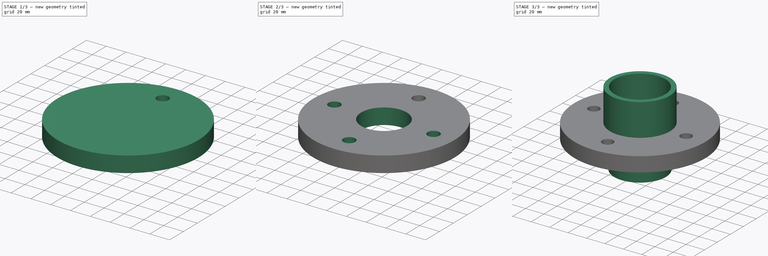
[diagram: build sequence overview — one tinted view per stage of 3, left to right]
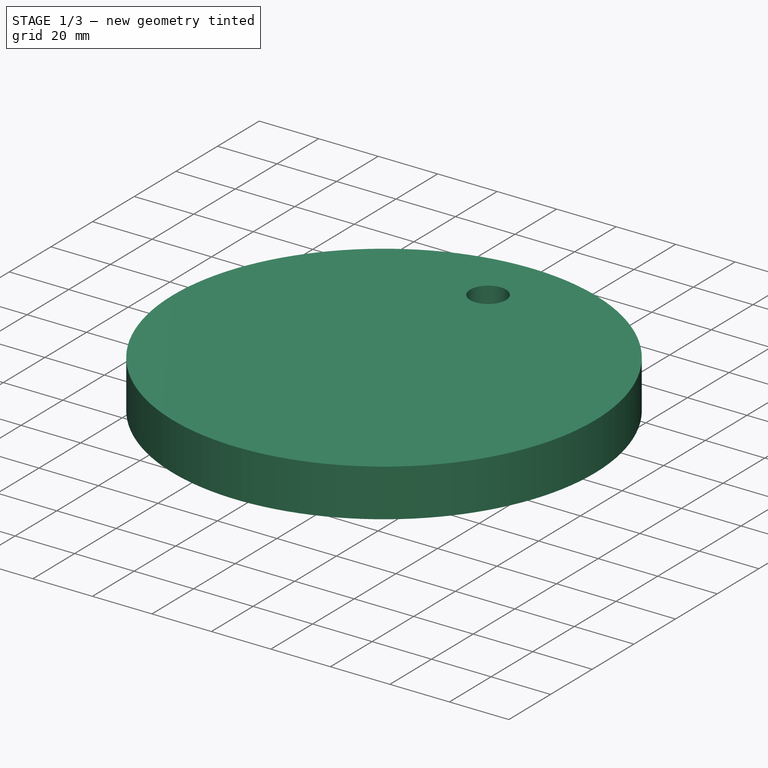
[diagram: stage 1 of 3 — iso view after this stage's code; geometry added in this stage tinted green]
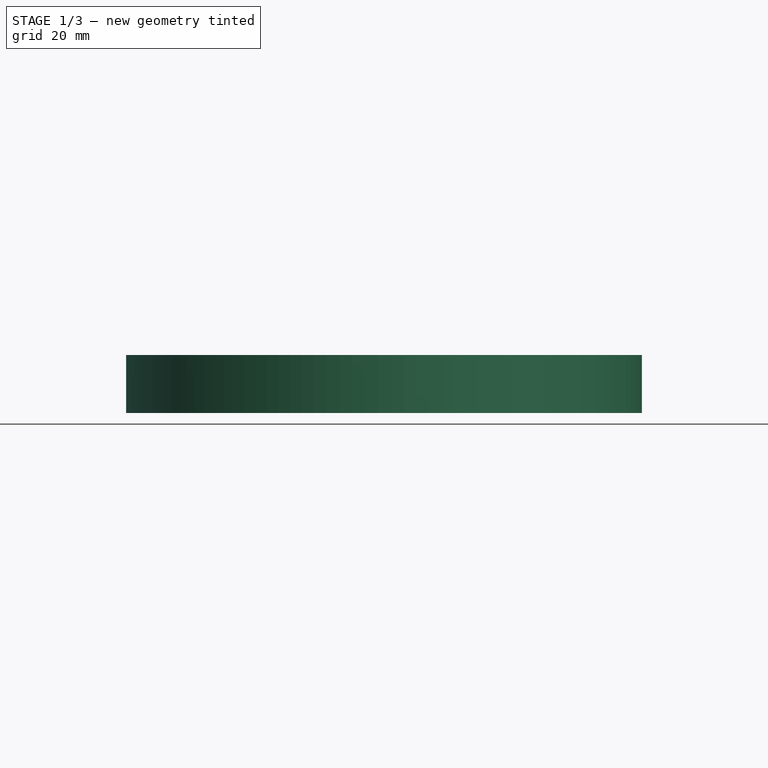
[diagram: stage 1 of 3 — front view after this stage's code; geometry added in this stage tinted green]
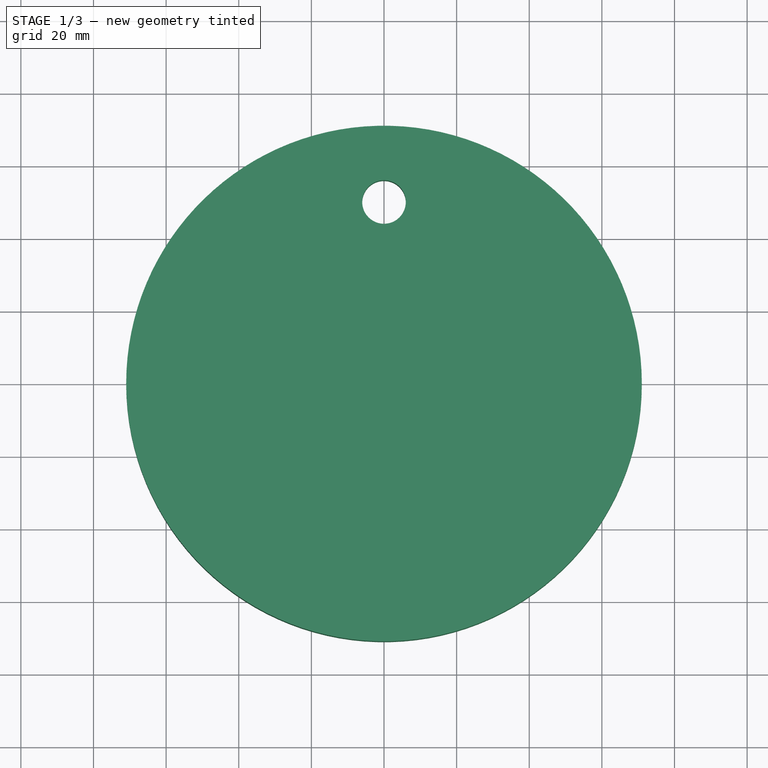
[diagram: stage 1 of 3 — top view after this stage's code; geometry added in this stage tinted green]
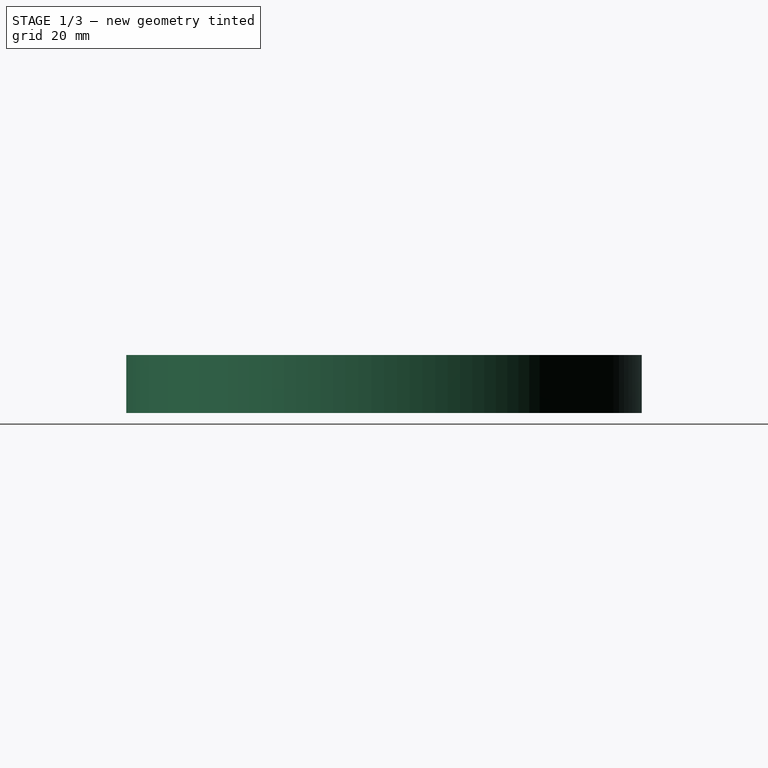
[diagram: stage 1 of 3 — right view after this stage's code; geometry added in this stage tinted green]
FCSTD DOCUMENT  (FreeCAD 0.20R29177 (Git))
Label: Hub_Flange
License: All rights reserved
LicenseURL: http://en.wikipedia.org/wiki/All_rights_reserved
objects: Sketcher::SketchObject×5, PartDesign::Pad×3, PartDesign::Pocket×2, PartDesign::Plane×1, PartDesign::PolarPattern×1, PartDesign::Body×1, Spreadsheet::Sheet×1
note: 18 computed .brp shape members not serialized (recipe doc carries the construction recipe); baked Part::Feature solids carry a one-line shape summary decoded from their .brp
EXTERNAL_REF file=../../Master_of_Puppets.FCStd obj=Hub

FEATURE [Sketcher::SketchObject] Sketch  label="MiddlePadSketch"
  FullyConstrained = true
  MapMode = 5
  Support = -> [XY_Plane]
  expr: Constraints[1] = Spreadsheet.MiddlePadRadius
  sketch-geometry (1):
    g0: Circle CenterX=0 CenterY=0 CenterZ=0 NormalX=0 NormalY=0 NormalZ=1 AngleXU=0 Radius=71
  constraints (2):
    c: Coincident(g0,g-1)
    c: Radius(g0) = 71
FEATURE [PartDesign::Pad] Pad  label="MiddlePad"
  AllowMultiFace = false
  Direction = (0,0,1)
  Length = 16
  Length2 = 100
  Profile = -> Sketch
  Type = 0
FEATURE [PartDesign::Plane] DatumPlane
  Length = 170.4
  Placement = pos=(0,0,16) rot=(0,0,1;0rad)
  ResizeMode = 0
  Width = 170.4
  expr: .Placement.Base.z = Pad.Length
FEATURE [Sketcher::SketchObject] Sketch001  label="HubHoleSketch"
  FullyConstrained = true
  MapMode = 5
  Placement = pos=(0,0,16) rot=(0,0,1;0rad)
  Support = -> [DatumPlane]
  expr: Constraints[0] = Spreadsheet.HubPitchCircleRadius
  expr: Constraints[1] = Spreadsheet.HubHolesRadius
  sketch-geometry (1):
    g0: Circle CenterX=0 CenterY=50 CenterZ=0 NormalX=0 NormalY=0 NormalZ=1 AngleXU=0 Radius=6
  constraints (3):
    c: Distance(g-1,g0) = 50
    c: Radius(g0) = 6
    c: PointOnObject(g0,g-2)
FEATURE [PartDesign::Pocket] Pocket  label="HubHole"
  AllowMultiFace = false
  BaseFeature = -> Pad
  Direction = (0,0,-1)
  Length = 16
  Length2 = 100
  Profile = -> Sketch001
  Type = 0
  expr: Length = Spreadsheet.MiddlePadThickness
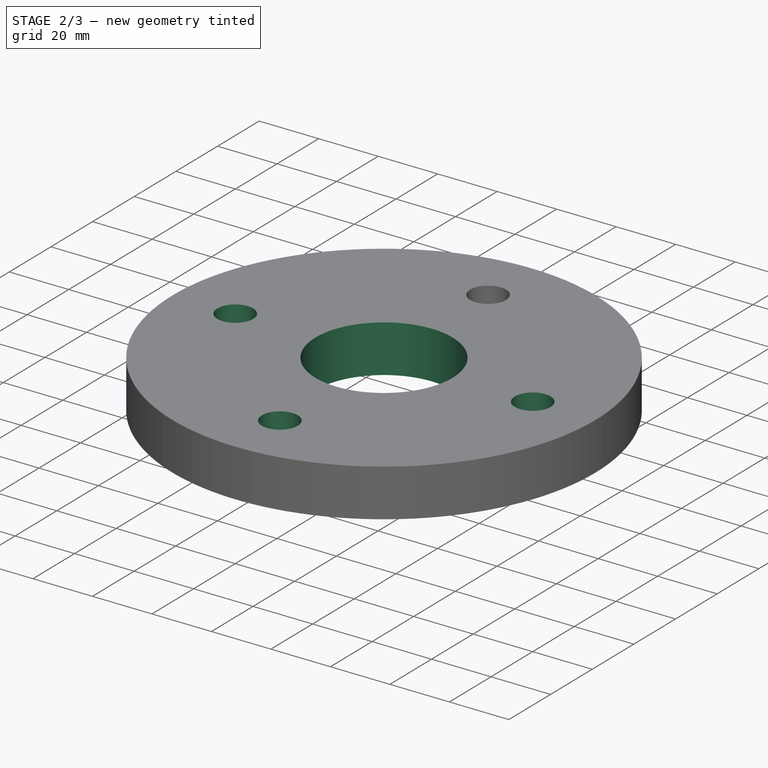
[diagram: stage 2 of 3 — iso view after this stage's code; geometry added in this stage tinted green]
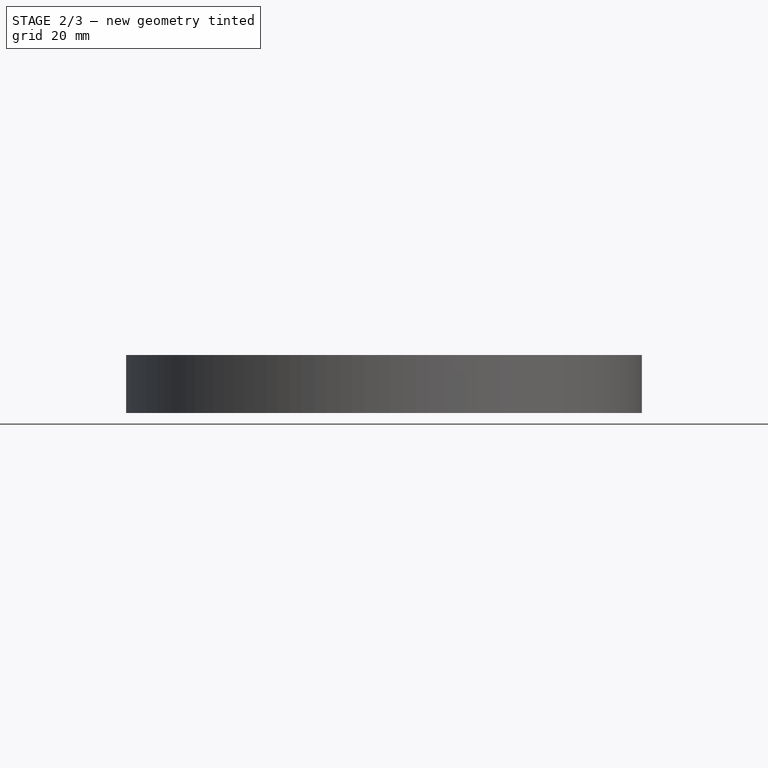
[diagram: stage 2 of 3 — front view after this stage's code; geometry added in this stage tinted green]
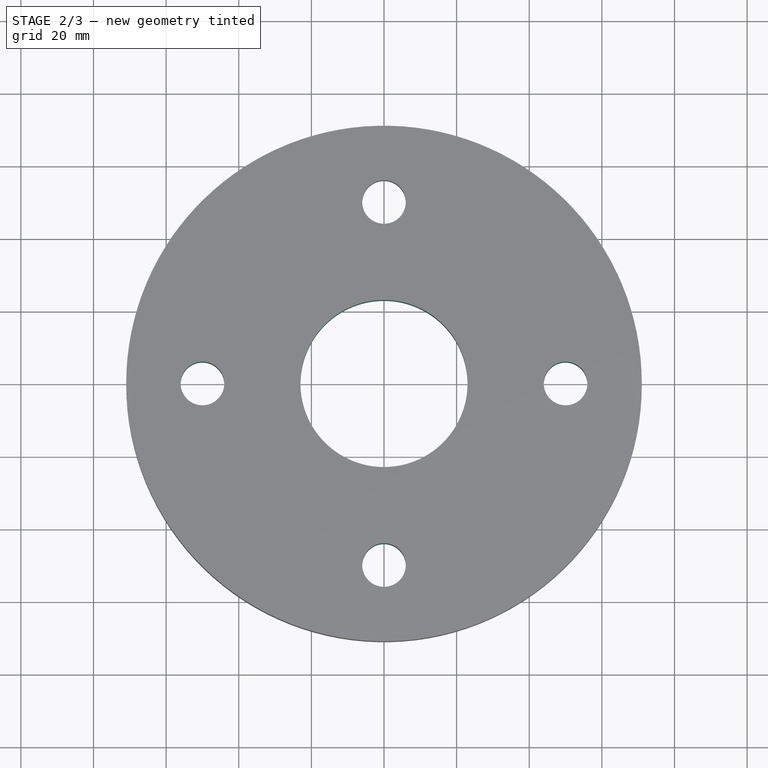
[diagram: stage 2 of 3 — top view after this stage's code; geometry added in this stage tinted green]
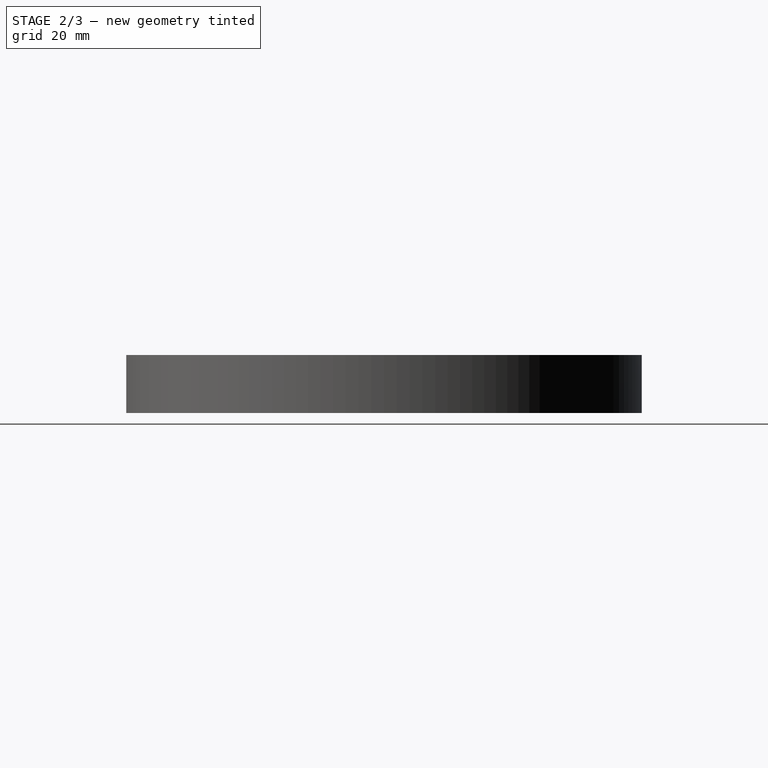
[diagram: stage 2 of 3 — right view after this stage's code; geometry added in this stage tinted green]
FEATURE [Sketcher::SketchObject] Sketch002  label="InnerHoleSketch"
  FullyConstrained = false
  MapMode = 5
  Placement = pos=(0,0,16) rot=(0,0,1;0rad)
  Support = -> [DatumPlane]
  expr: Constraints[0] = Spreadsheet.RotorSidePadRadius - Spreadsheet.ProtrudingPadThickness
  sketch-geometry (1):
    g0: Circle CenterX=0 CenterY=0 CenterZ=0 NormalX=0 NormalY=0 NormalZ=1 AngleXU=0 Radius=23
  constraints (1):
    c: Radius(g0) = 23
FEATURE [PartDesign::Pocket] Pocket001  label="InnerHole"
  AllowMultiFace = false
  BaseFeature = -> Pocket
  Direction = (0,0,-1)
  Length = 16
  Length2 = 100
  Profile = -> Sketch002
  Type = 0
  expr: Length = Pad.Length
FEATURE [PartDesign::PolarPattern] PolarPattern
  Angle = 360
  Axis = -> Z_Axis
  BaseFeature = -> Pocket001
  Occurrences = 4
  Originals = -> [Pocket]
  expr: Occurrences = Spreadsheet.NumberOfHoles
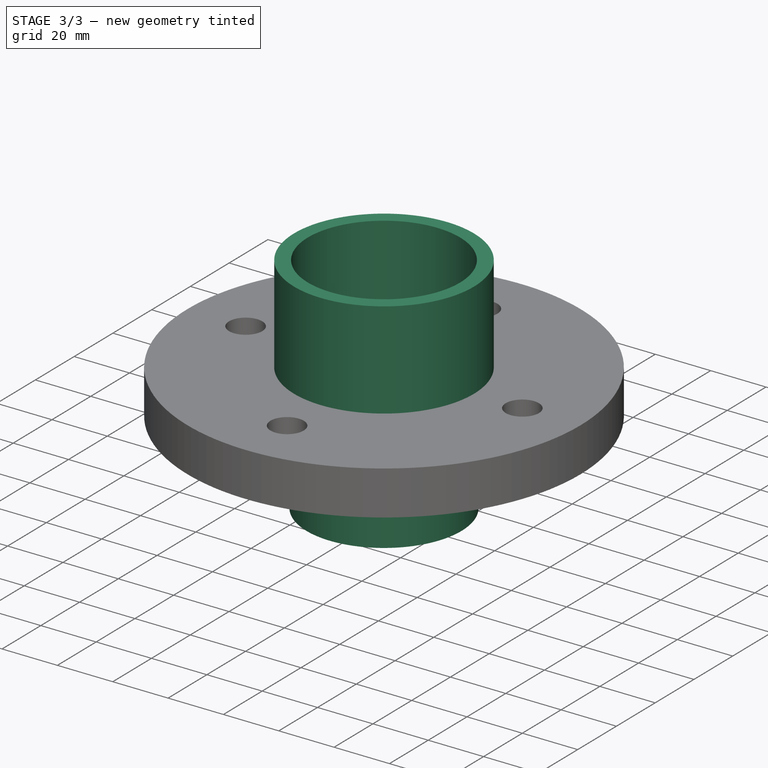
[diagram: stage 3 of 3 — iso view after this stage's code; geometry added in this stage tinted green]
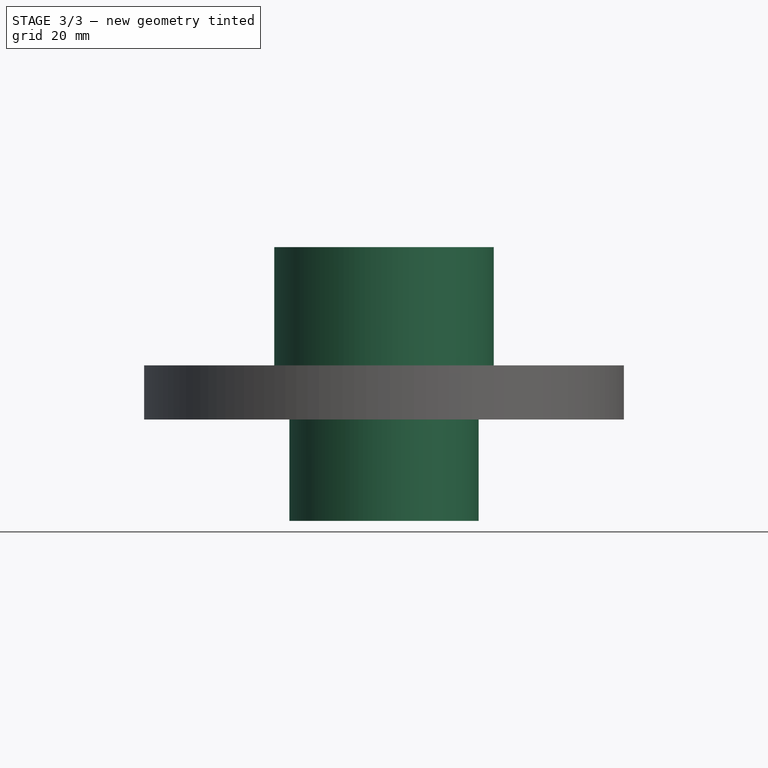
[diagram: stage 3 of 3 — front view after this stage's code; geometry added in this stage tinted green]
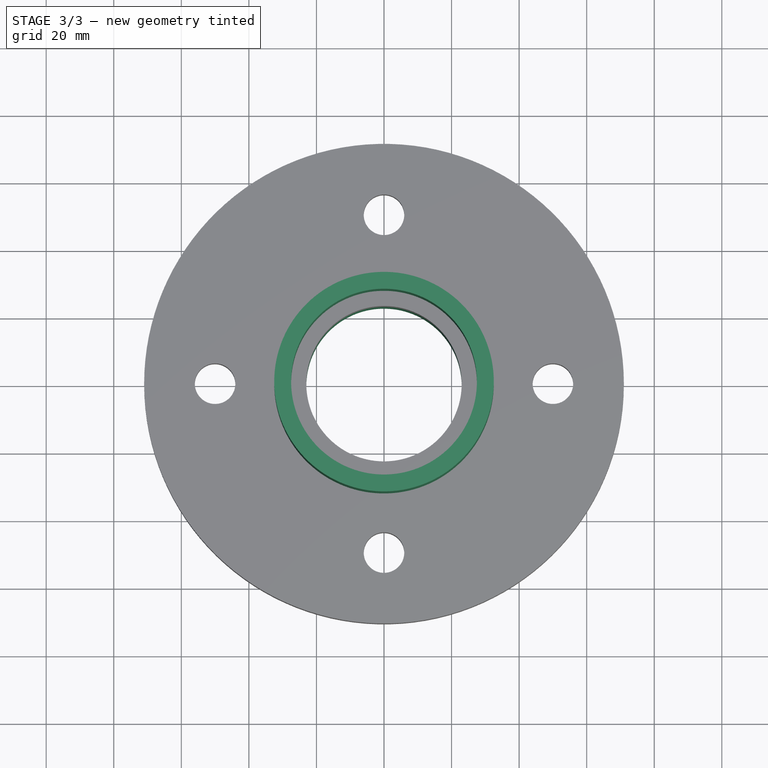
[diagram: stage 3 of 3 — top view after this stage's code; geometry added in this stage tinted green]
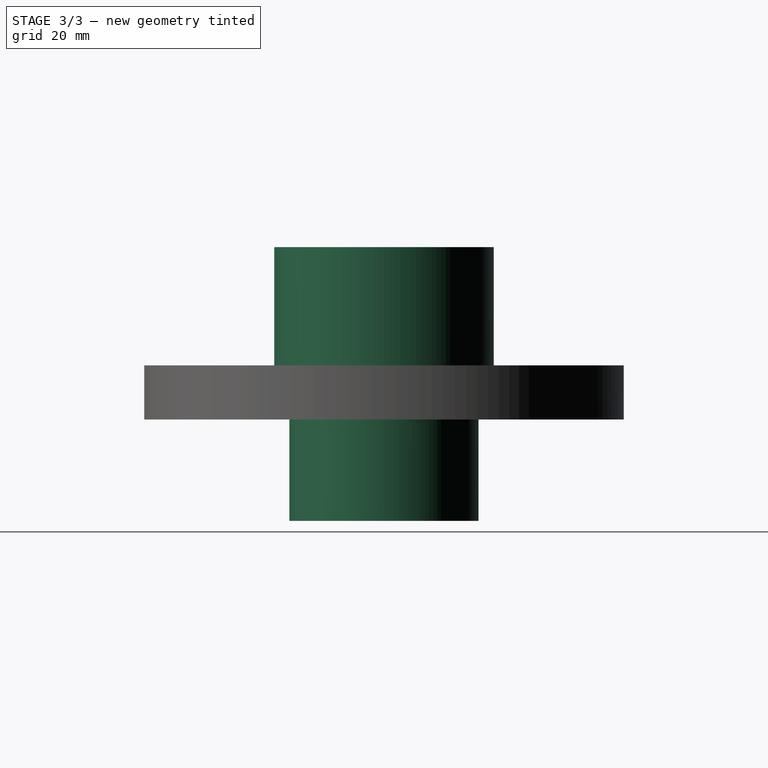
[diagram: stage 3 of 3 — right view after this stage's code; geometry added in this stage tinted green]
FEATURE [Sketcher::SketchObject] Sketch004  label="FrameSidePadSketch"
  FullyConstrained = true
  MapMode = 5
  Placement = pos=(0,0,16) rot=(0,0,1;0rad)
  Support = -> [DatumPlane]
  expr: Constraints[1] = Spreadsheet.FrameSidePadRadius - Spreadsheet.ProtrudingPadThickness
  expr: Constraints[3] = Spreadsheet.FrameSidePadRadius
  sketch-geometry (2):
    g0: Circle CenterX=0 CenterY=0 CenterZ=0 NormalX=0 NormalY=0 NormalZ=1 AngleXU=0 Radius=27.5
    g1: Circle CenterX=0 CenterY=0 CenterZ=0 NormalX=0 NormalY=0 NormalZ=1 AngleXU=0 Radius=32.5
  constraints (4):
    c: Coincident(g0,g-1)
    c: Radius(g0) = 27.5
    c: Coincident(g1,g0)
    c: Radius(g1) = 32.5
FEATURE [PartDesign::Pad] Pad001  label="FrameSidePad"
  AllowMultiFace = false
  BaseFeature = -> PolarPattern
  Direction = (0,0,1)
  Length = 35
  Length2 = 100
  Profile = -> Sketch004
  Type = 0
  expr: Length = Spreadsheet.FrameSidePadWidth - Spreadsheet.CoverThickness
FEATURE [Sketcher::SketchObject] Sketch005  label="RotorSidePadSketch"
  FullyConstrained = true
  MapMode = 5
  Placement = pos=(0,0,0) rot=(0,1,0;3.14159rad)
  Support = -> [XY_Plane]
  expr: Constraints[1] = Spreadsheet.RotorSidePadRadius - Spreadsheet.ProtrudingPadThickness
  expr: Constraints[3] = Spreadsheet.RotorSidePadRadius
  sketch-geometry (2):
    g0: Circle CenterX=0 CenterY=0 CenterZ=0 NormalX=0 NormalY=0 NormalZ=1 AngleXU=0 Radius=23
    g1: Circle CenterX=0 CenterY=0 CenterZ=0 NormalX=0 NormalY=0 NormalZ=1 AngleXU=0 Radius=28
  constraints (4):
    c: Coincident(g0,g-1)
    c: Radius(g0) = 23
    c: Coincident(g1,g0)
    c: Radius(g1) = 28
FEATURE [PartDesign::Pad] Pad002  label="RotorSidePad"
  AllowMultiFace = false
  BaseFeature = -> Pad001
  Direction = (0,0,-1)
  Length = 30
  Length2 = 100
  Profile = -> Sketch005
  Type = 0
  expr: Length = Spreadsheet.RotorSidePadWidth - Spreadsheet.CoverThickness
FEATURE [PartDesign::Body] Body  label="Hub_Flange"
  Group = -> [Sketch,Pad,DatumPlane,Sketch001,Pocket,Sketch002,Pocket001,PolarPattern,Sketch004,Pad001,Sketch005,Pad002]
  Origin = -> Origin
  Tip = -> Pad002
FEATURE [Spreadsheet::Sheet] Spreadsheet
  cells = A1=Inputs; A2=HubPitchCircleRadius; B2(HubPitchCircleRadius)==Master_of_Puppets#Hub.HubPitchCircleRadius; A3=HubHolesRadius; B3(HubHolesRadius)==Master_of_Puppets#Hub.HubHolesRadius; A4=MiddlePadRadius; B4(MiddlePadRadius)==Master_of_Puppets#Hub.MiddlePadRadius; A5=MiddlePadThickness; B5(MiddlePadThickness)==Master_of_Puppets#Hub.MiddlePadThickness; A6=ProtrudingPadThickness; B6(ProtrudingPadThickness)==Master_of_Puppets#Hub.ProtrudingPadThickness; A7=CoverThickness; B7(CoverThickness)==Master_of_Puppets#Hub.CoverThickness; A8=FrameSidePadRadius; B8(FrameSidePadRadius)==Master_of_Puppets#Hub.FrameSidePadRadius; A9=FrameSidePadWidth; B9(FrameSidePadWidth)==Master_of_Puppets#Hub.FrameSidePadWidth; A10=RotorSidePadRadius; B10(RotorSidePadRadius)==Master_of_Puppets#Hub.RotorSidePadRadius; A11=RotorSidePadWidth; B11(RotorSidePadWidth)==Master_of_Puppets#Hub.RotorSidePadWidth; A12=NumberOfHoles; B12(NumberOfHoles)==Master_of_Puppets#Hub.NumberOfHoles
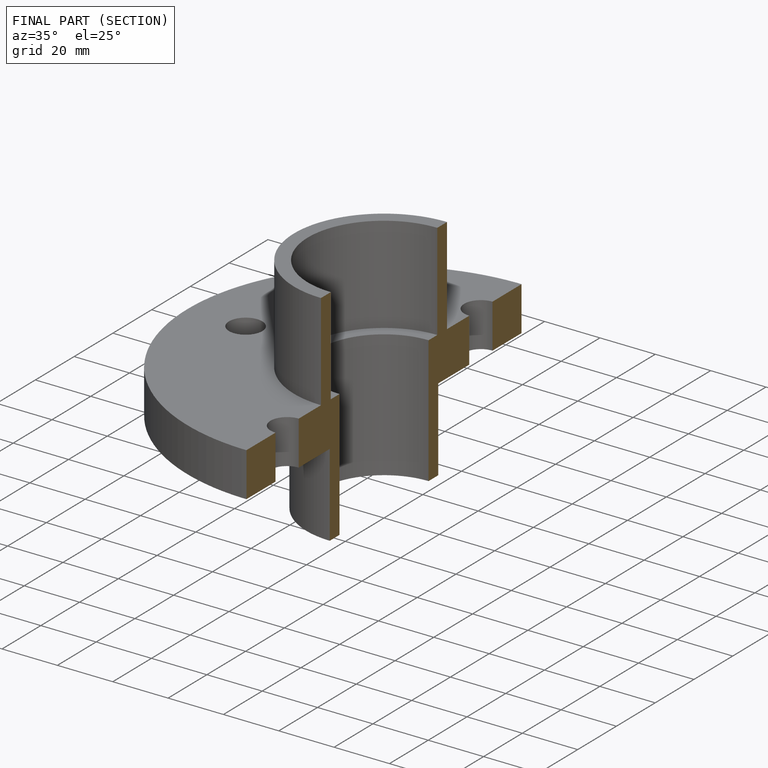
[diagram: finished part — half-section view (interior)]
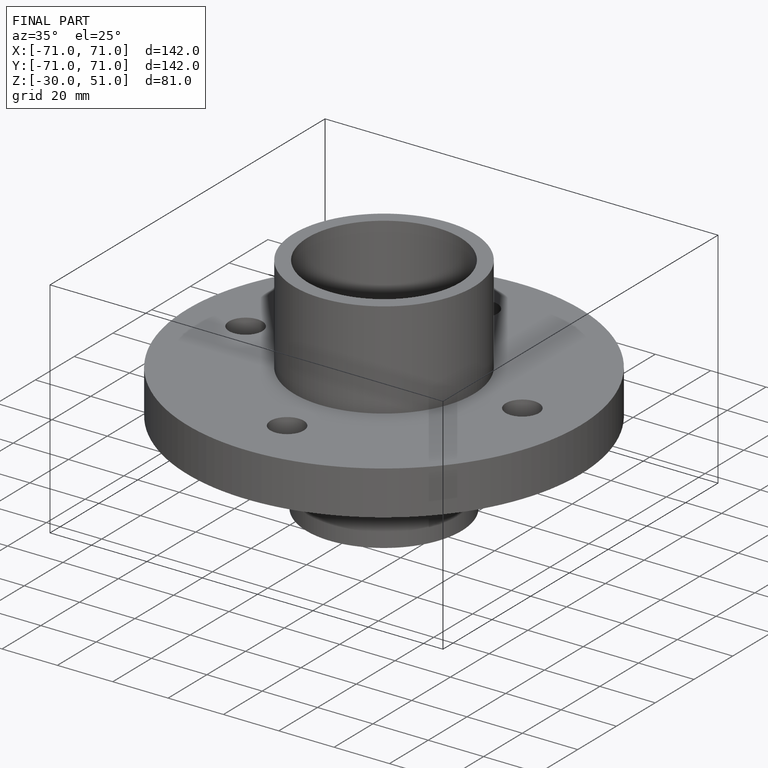
[diagram: finished part — iso view with bounding-box wireframe]
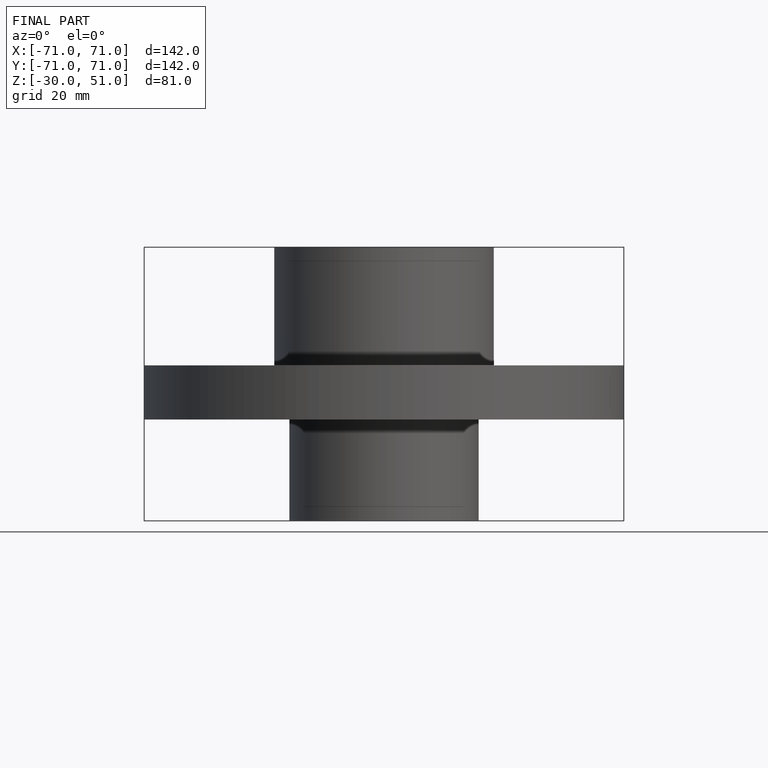
[diagram: finished part — front view with bounding-box wireframe]
